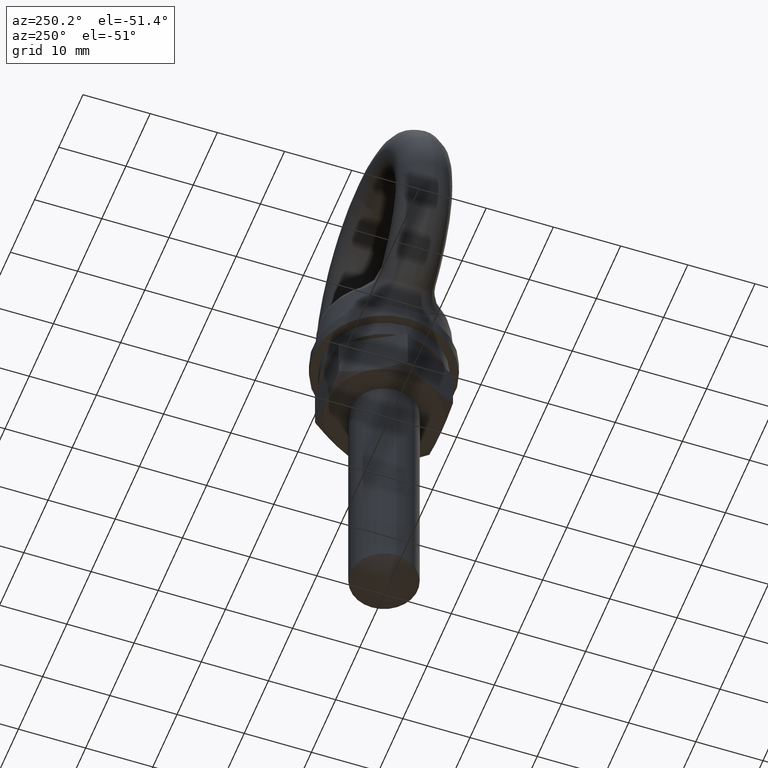
[diagram: clean part render]
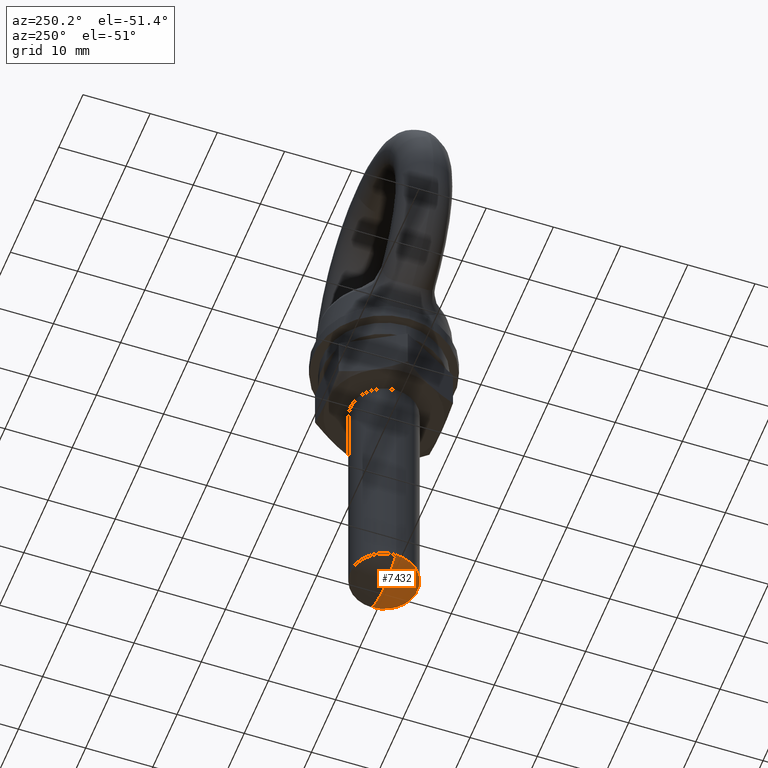
[diagram: same view with one face highlighted and labeled with its STEP entity id]
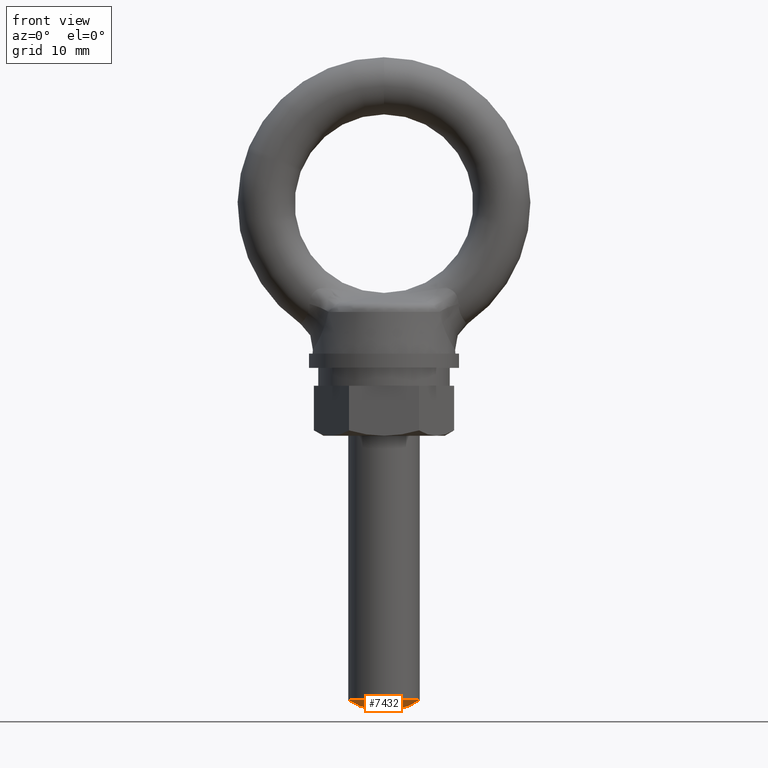
[diagram: same view with one face highlighted and labeled with its STEP entity id]
A machine part, auxiliary view. The second image highlights one B-rep face of the part: STEP entity #7432.
A second angle (front view) of the same face is appended — the face is thin or edge-on in the first view.
In plain terms, the highlighted spherical surface has radius 9.0833 mm.
Its self-contained STEP definition (entity closure, byte-faithful):
#3015 = DIRECTION ( 'NONE',  ( -1.000000000000000000, 0.0000000000000000000, 0.0000000000000000000 ) ) ;
#3016 = DIRECTION ( 'NONE',  ( 0.0000000000000000000, 0.0000000000000000000, -1.000000000000000000 ) ) ;
#3017 = CARTESIAN_POINT ( 'NONE',  ( 0.0000000000000000000, 0.0000000000000000000, -69.50000518315189900 ) ) ;
#3018 = AXIS2_PLACEMENT_3D ( 'NONE', #3017, #3016, #3015 ) ;
#3156 = CIRCLE ( 'NONE', #3018, 4.999999622219589500 ) ;
#3483 = CARTESIAN_POINT ( 'NONE',  ( -5.561753652842237700E-016, 0.0000000000000000000, -71.00000500000000200 ) ) ;
#4666 = DIRECTION ( 'NONE',  ( 0.0000000000000000000, 0.0000000000000000000, -1.000000000000000000 ) ) ;
#4667 = DIRECTION ( 'NONE',  ( 0.0000000000000000000, -1.000000000000000000, 0.0000000000000000000 ) ) ;
#4668 = CARTESIAN_POINT ( 'NONE',  ( 0.0000000000000000000, 0.0000000000000000000, -61.91667199999999800 ) ) ;
#4669 = AXIS2_PLACEMENT_3D ( 'NONE', #4668, #4667, #4666 ) ;
#4670 = CIRCLE ( 'NONE', #4669, 9.083333000000006800 ) ;
#5957 = DIRECTION ( 'NONE',  ( -1.000000000000000000, -1.224606353822377000E-016, 0.0000000000000000000 ) ) ;
#5958 = DIRECTION ( 'NONE',  ( -1.224606353822377300E-016, 1.000000000000000000, 0.0000000000000000000 ) ) ;
#5959 = CARTESIAN_POINT ( 'NONE',  ( 0.0000000000000000000, 0.0000000000000000000, -61.91667199999999800 ) ) ;
#5960 = AXIS2_PLACEMENT_3D ( 'NONE', #5959, #5958, #5957 ) ;
#5961 = CIRCLE ( 'NONE', #5960, 9.083333000000001400 ) ;
#6088 = CARTESIAN_POINT ( 'NONE',  ( 4.999999622219589500, 0.0000000000000000000, -69.50000518315189900 ) ) ;
#6089 = CARTESIAN_POINT ( 'NONE',  ( -4.999999622219589500, 6.123031537795731500E-016, -69.50000518315189900 ) ) ;
#6614 = DIRECTION ( 'NONE',  ( -1.000000000000000000, 0.0000000000000000000, 0.0000000000000000000 ) ) ;
#6615 = DIRECTION ( 'NONE',  ( 0.0000000000000000000, 1.000000000000000000, 0.0000000000000000000 ) ) ;
#6616 = AXIS2_PLACEMENT_3D ( 'NONE', #6619, #6615, #6614 ) ;
#6617 = SPHERICAL_SURFACE ( 'NONE', #6616, 9.083333000000001400 ) ;
#6619 = CARTESIAN_POINT ( 'NONE',  ( 0.0000000000000000000, 0.0000000000000000000, -61.91667199999999800 ) ) ;
#6620 = FACE_OUTER_BOUND ( 'NONE', #7083, .T. ) ;
#7080 = ORIENTED_EDGE ( 'NONE', *, *, #7222, .F. ) ;
#7083 = EDGE_LOOP ( 'NONE', ( #7080, #7579, #7570 ) ) ;
#7153 = EDGE_CURVE ( 'NONE', #7208, #7206, #3156, .T. ) ;
#7165 = VERTEX_POINT ( 'NONE', #3483 ) ;
#7206 = VERTEX_POINT ( 'NONE', #6089 ) ;
#7208 = VERTEX_POINT ( 'NONE', #6088 ) ;
#7222 = EDGE_CURVE ( 'NONE', #7208, #7165, #5961, .T. ) ;
#7244 = EDGE_CURVE ( 'NONE', #7206, #7165, #4670, .T. ) ;
#7432 = ADVANCED_FACE ( 'NONE', ( #6620 ), #6617, .T. ) ;
#7570 = ORIENTED_EDGE ( 'NONE', *, *, #7244, .T. ) ;
#7579 = ORIENTED_EDGE ( 'NONE', *, *, #7153, .T. ) ;